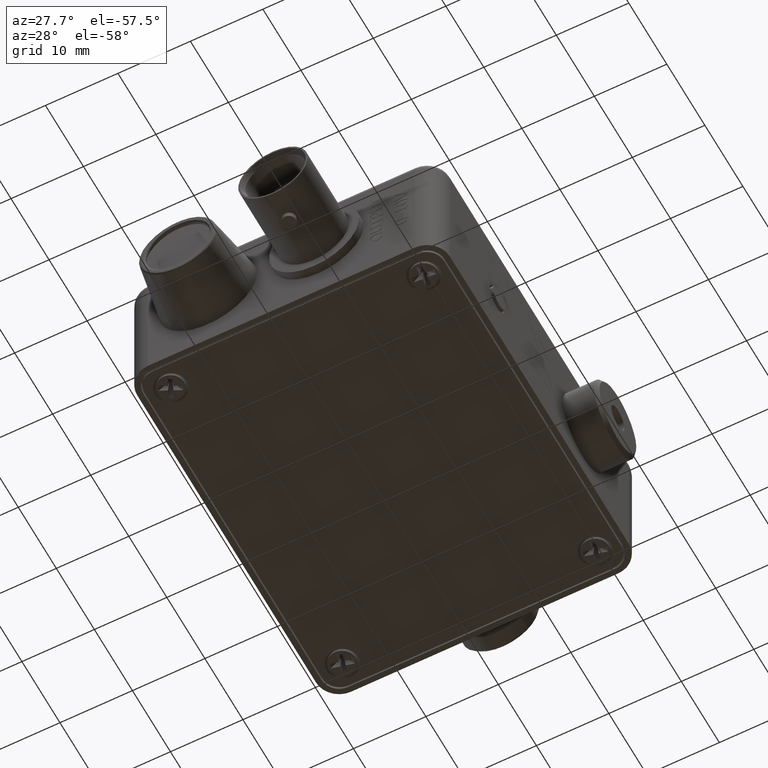
[diagram: clean part render]
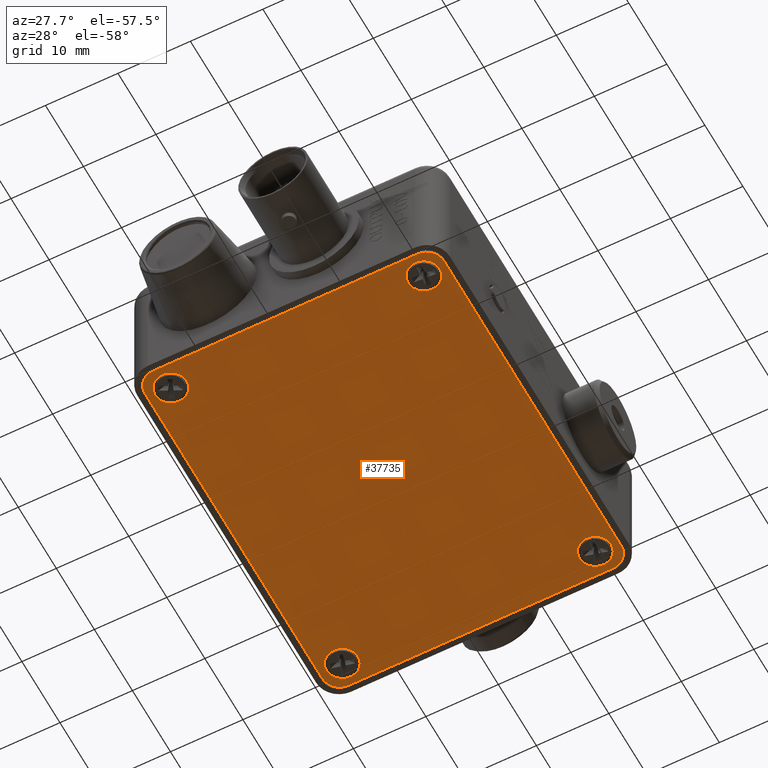
[diagram: same view with one face highlighted and labeled with its STEP entity id]
A machine part, auxiliary view. The second image highlights one B-rep face of the part: STEP entity #37735.
In plain terms, the highlighted planar face has unit normal (-0, -0, 1).
Its self-contained STEP definition (entity closure, byte-faithful):
#37459 = VERTEX_POINT ( 'NONE', #112991 ) ;
#37463 = EDGE_CURVE ( 'NONE', #37459, #37466, #112983, .T. ) ;
#37466 = VERTEX_POINT ( 'NONE', #112974 ) ;
#37467 = VERTEX_POINT ( 'NONE', #112972 ) ;
#37484 = VERTEX_POINT ( 'NONE', #113008 ) ;
#37487 = EDGE_CURVE ( 'NONE', #37484, #37488, #113109, .T. ) ;
#37488 = VERTEX_POINT ( 'NONE', #113101 ) ;
#37505 = VERTEX_POINT ( 'NONE', #113139 ) ;
#37508 = EDGE_CURVE ( 'NONE', #37505, #37467, #113135, .T. ) ;
#37560 = VERTEX_POINT ( 'NONE', #113371 ) ;
#37562 = EDGE_CURVE ( 'NONE', #37560, #37565, #113366, .T. ) ;
#37565 = VERTEX_POINT ( 'NONE', #113461 ) ;
#37654 = EDGE_CURVE ( 'NONE', #37656, #37658, #113705, .T. ) ;
#37656 = VERTEX_POINT ( 'NONE', #113698 ) ;
#37658 = VERTEX_POINT ( 'NONE', #113696 ) ;
#37672 = VERTEX_POINT ( 'NONE', #113686 ) ;
#37677 = EDGE_CURVE ( 'NONE', #37679, #37672, #113805, .T. ) ;
#37679 = VERTEX_POINT ( 'NONE', #113801 ) ;
#37690 = EDGE_CURVE ( 'NONE', #37691, #37692, #113851, .T. ) ;
#37691 = VERTEX_POINT ( 'NONE', #113843 ) ;
#37692 = VERTEX_POINT ( 'NONE', #113841 ) ;
#37722 = ORIENTED_EDGE ( 'NONE', *, *, #37677, .T. ) ;
#37724 = ORIENTED_EDGE ( 'NONE', *, *, #37725, .T. ) ;
#37725 = EDGE_CURVE ( 'NONE', #37672, #37691, #113979, .T. ) ;
#37735 = ADVANCED_FACE ( 'NONE', ( #114070, #114068, #114067, #114066, #114065 ), #114140, .F. ) ;
#37737 = EDGE_LOOP ( 'NONE', ( #37738, #37741 ) ) ;
#37738 = ORIENTED_EDGE ( 'NONE', *, *, #37740, .F. ) ;
#37740 = EDGE_CURVE ( 'NONE', #37467, #37505, #114128, .T. ) ;
#37741 = ORIENTED_EDGE ( 'NONE', *, *, #37508, .F. ) ;
#37745 = EDGE_LOOP ( 'NONE', ( #37748, #37863 ) ) ;
#37748 = ORIENTED_EDGE ( 'NONE', *, *, #37750, .F. ) ;
#37750 = EDGE_CURVE ( 'NONE', #37488, #37484, #114113, .T. ) ;
#37777 = EDGE_CURVE ( 'NONE', #37779, #37781, #114264, .T. ) ;
#37779 = VERTEX_POINT ( 'NONE', #114258 ) ;
#37781 = VERTEX_POINT ( 'NONE', #114256 ) ;
#37844 = ORIENTED_EDGE ( 'NONE', *, *, #37690, .T. ) ;
#37845 = ORIENTED_EDGE ( 'NONE', *, *, #37847, .T. ) ;
#37847 = EDGE_CURVE ( 'NONE', #37692, #37656, #114340, .T. ) ;
#37848 = ORIENTED_EDGE ( 'NONE', *, *, #37654, .T. ) ;
#37849 = ORIENTED_EDGE ( 'NONE', *, *, #37850, .T. ) ;
#37850 = EDGE_CURVE ( 'NONE', #37658, #37779, #114328, .T. ) ;
#37851 = ORIENTED_EDGE ( 'NONE', *, *, #37777, .T. ) ;
#37853 = ORIENTED_EDGE ( 'NONE', *, *, #37855, .T. ) ;
#37855 = EDGE_CURVE ( 'NONE', #37781, #37679, #114426, .T. ) ;
#37863 = ORIENTED_EDGE ( 'NONE', *, *, #37487, .F. ) ;
#37865 = EDGE_LOOP ( 'NONE', ( #37866, #37868 ) ) ;
#37866 = ORIENTED_EDGE ( 'NONE', *, *, #37867, .F. ) ;
#37867 = EDGE_CURVE ( 'NONE', #37466, #37459, #114481, .T. ) ;
#37868 = ORIENTED_EDGE ( 'NONE', *, *, #37463, .F. ) ;
#37869 = EDGE_LOOP ( 'NONE', ( #37871, #37874 ) ) ;
#37871 = ORIENTED_EDGE ( 'NONE', *, *, #37872, .F. ) ;
#37872 = EDGE_CURVE ( 'NONE', #37565, #37560, #114470, .T. ) ;
#37874 = ORIENTED_EDGE ( 'NONE', *, *, #37562, .F. ) ;
#37877 = EDGE_LOOP ( 'NONE', ( #37722, #37724, #37844, #37845, #37848, #37849, #37851, #37853 ) ) ;
#112972 = CARTESIAN_POINT ( 'NONE',  ( 0.2484999999999999700, 1.937499999999999800, -1.689568522908650700E-016 ) ) ;
#112974 = CARTESIAN_POINT ( 'NONE',  ( 1.623499999999999900, 0.1624999999999999800, -3.482343768750823800E-016 ) ) ;
#112976 = DIRECTION ( 'NONE',  ( 1.000000000000000000, 0.0000000000000000000, 2.074008503664340500E-017 ) ) ;
#112978 = DIRECTION ( 'NONE',  ( 2.074008503664369100E-017, 1.206915742332253800E-016, -1.000000000000000000 ) ) ;
#112980 = CARTESIAN_POINT ( 'NONE',  ( 1.537499999999999900, 0.1624999999999999800, -3.500180241882337100E-016 ) ) ;
#112982 = AXIS2_PLACEMENT_3D ( 'NONE', #112980, #112978, #112976 ) ;
#112983 = CIRCLE ( 'NONE', #112982, 0.08600000000000011800 ) ;
#112991 = CARTESIAN_POINT ( 'NONE',  ( 1.451499999999999800, 0.1624999999999999500, -3.518016715013850800E-016 ) ) ;
#113008 = CARTESIAN_POINT ( 'NONE',  ( 0.07650000000000012300, 0.1624999999999999500, -3.859497714221883500E-016 ) ) ;
#113101 = CARTESIAN_POINT ( 'NONE',  ( 0.2484999999999998300, 0.1624999999999999800, -3.823824767958856900E-016 ) ) ;
#113103 = DIRECTION ( 'NONE',  ( 1.000000000000000000, 0.0000000000000000000, 2.074008503664346900E-017 ) ) ;
#113104 = DIRECTION ( 'NONE',  ( 2.074008503664369100E-017, 1.206915742332253800E-016, -1.000000000000000000 ) ) ;
#113106 = CARTESIAN_POINT ( 'NONE',  ( 0.1624999999999999800, 0.1624999999999999800, -3.841661241090370200E-016 ) ) ;
#113108 = AXIS2_PLACEMENT_3D ( 'NONE', #113106, #113104, #113103 ) ;
#113109 = CIRCLE ( 'NONE', #113108, 0.08599999999999985400 ) ;
#113128 = DIRECTION ( 'NONE',  ( 1.000000000000000000, 0.0000000000000000000, 2.074008503664379300E-017 ) ) ;
#113130 = DIRECTION ( 'NONE',  ( 2.074008503664369100E-017, 1.206915742332253800E-016, -1.000000000000000000 ) ) ;
#113131 = CARTESIAN_POINT ( 'NONE',  ( 0.1624999999999999800, 1.937499999999999800, -1.707404996040164500E-016 ) ) ;
#113133 = AXIS2_PLACEMENT_3D ( 'NONE', #113131, #113130, #113128 ) ;
#113135 = CIRCLE ( 'NONE', #113133, 0.08599999999999997900 ) ;
#113139 = CARTESIAN_POINT ( 'NONE',  ( 0.07650000000000001200, 1.937499999999999800, -1.725241469171678300E-016 ) ) ;
#113366 = CIRCLE ( 'NONE', #113467, 0.08599999999999985400 ) ;
#113371 = CARTESIAN_POINT ( 'NONE',  ( 1.451500000000000000, 1.937499999999999800, -1.383760469963645400E-016 ) ) ;
#113461 = CARTESIAN_POINT ( 'NONE',  ( 1.623499999999999700, 1.937499999999999800, -1.348087523700618100E-016 ) ) ;
#113462 = DIRECTION ( 'NONE',  ( 1.000000000000000000, 0.0000000000000000000, 2.074008503664382100E-017 ) ) ;
#113464 = DIRECTION ( 'NONE',  ( 2.074008503664369100E-017, 1.206915742332253800E-016, -1.000000000000000000 ) ) ;
#113465 = CARTESIAN_POINT ( 'NONE',  ( 1.537499999999999900, 1.937499999999999800, -1.365923996832131600E-016 ) ) ;
#113467 = AXIS2_PLACEMENT_3D ( 'NONE', #113465, #113464, #113462 ) ;
#113686 = CARTESIAN_POINT ( 'NONE',  ( 1.567499999999999700, 2.062500000000000000, -5.122214988120493500E-017 ) ) ;
#113696 = CARTESIAN_POINT ( 'NONE',  ( 0.1324999999999997600, 0.03749999999999980400, -3.329439742278321000E-016 ) ) ;
#113698 = CARTESIAN_POINT ( 'NONE',  ( 1.567499999999999900, 0.03750000000000007500, -2.987958743070287800E-016 ) ) ;
#113699 = DIRECTION ( 'NONE',  ( -1.000000000000000000, -1.110223024625156500E-016, -2.074008503664370400E-017 ) ) ;
#113700 = VECTOR ( 'NONE', #113699, 39.37007874015748100 ) ;
#113702 = CARTESIAN_POINT ( 'NONE',  ( 1.662499999999999900, 0.03750000000000007500, -2.987958743070287800E-016 ) ) ;
#113705 = LINE ( 'NONE', #113702, #113700 ) ;
#113801 = CARTESIAN_POINT ( 'NONE',  ( 0.1324999999999994800, 2.062499999999999600, -8.537024980200822600E-017 ) ) ;
#113802 = DIRECTION ( 'NONE',  ( 1.000000000000000000, 1.110223024625156500E-016, 2.074008503664370400E-017 ) ) ;
#113803 = VECTOR ( 'NONE', #113802, 39.37007874015748100 ) ;
#113804 = CARTESIAN_POINT ( 'NONE',  ( 1.662499999999999600, 2.062500000000000000, -5.122214988120493500E-017 ) ) ;
#113805 = LINE ( 'NONE', #113804, #113803 ) ;
#113841 = CARTESIAN_POINT ( 'NONE',  ( 1.662499999999999900, 0.1325000000000000300, -2.817218243466271300E-016 ) ) ;
#113843 = CARTESIAN_POINT ( 'NONE',  ( 1.662499999999999600, 1.967500000000000000, -5.975917486140575200E-017 ) ) ;
#113845 = DIRECTION ( 'NONE',  ( 1.110223024625156500E-016, -1.000000000000000000, -1.206915742332253800E-016 ) ) ;
#113846 = VECTOR ( 'NONE', #113845, 39.37007874015748100 ) ;
#113849 = CARTESIAN_POINT ( 'NONE',  ( 1.662499999999999600, 2.062500000000000000, -5.122214988120493500E-017 ) ) ;
#113851 = LINE ( 'NONE', #113849, #113846 ) ;
#113979 = CIRCLE ( 'NONE', #114095, 0.09499999999999994600 ) ;
#114065 = FACE_OUTER_BOUND ( 'NONE', #37877, .T. ) ;
#114066 = FACE_BOUND ( 'NONE', #37869, .T. ) ;
#114067 = FACE_BOUND ( 'NONE', #37865, .T. ) ;
#114068 = FACE_BOUND ( 'NONE', #37745, .T. ) ;
#114070 = FACE_BOUND ( 'NONE', #37737, .T. ) ;
#114091 = DIRECTION ( 'NONE',  ( -1.000000000000000000, 0.0000000000000000000, -2.074008503664368800E-017 ) ) ;
#114093 = DIRECTION ( 'NONE',  ( 2.074008503664369100E-017, 1.206915742332253800E-016, -1.000000000000000000 ) ) ;
#114094 = CARTESIAN_POINT ( 'NONE',  ( 1.567499999999999700, 1.967500000000000000, -5.975917486140575200E-017 ) ) ;
#114095 = AXIS2_PLACEMENT_3D ( 'NONE', #114094, #114093, #114091 ) ;
#114108 = DIRECTION ( 'NONE',  ( 1.000000000000000000, 0.0000000000000000000, 2.074008503664346900E-017 ) ) ;
#114110 = DIRECTION ( 'NONE',  ( 2.074008503664369100E-017, 1.206915742332253800E-016, -1.000000000000000000 ) ) ;
#114111 = CARTESIAN_POINT ( 'NONE',  ( 0.1624999999999999800, 0.1624999999999999800, -3.841661241090370200E-016 ) ) ;
#114112 = AXIS2_PLACEMENT_3D ( 'NONE', #114111, #114110, #114108 ) ;
#114113 = CIRCLE ( 'NONE', #114112, 0.08599999999999985400 ) ;
#114120 = DIRECTION ( 'NONE',  ( 1.000000000000000000, 0.0000000000000000000, 2.074008503664379300E-017 ) ) ;
#114123 = DIRECTION ( 'NONE',  ( 2.074008503664369100E-017, 1.206915742332253800E-016, -1.000000000000000000 ) ) ;
#114125 = CARTESIAN_POINT ( 'NONE',  ( 0.1624999999999999800, 1.937499999999999800, -1.707404996040164500E-016 ) ) ;
#114127 = AXIS2_PLACEMENT_3D ( 'NONE', #114125, #114123, #114120 ) ;
#114128 = CIRCLE ( 'NONE', #114127, 0.08599999999999997900 ) ;
#114134 = DIRECTION ( 'NONE',  ( -1.000000000000000000, -1.110223024625156500E-016, -2.074008503664370400E-017 ) ) ;
#114135 = DIRECTION ( 'NONE',  ( -2.074008503664369100E-017, -1.206915742332253800E-016, 1.000000000000000000 ) ) ;
#114136 = CARTESIAN_POINT ( 'NONE',  ( 0.03749999999999953400, 2.062499999999999600, -8.537024980200822600E-017 ) ) ;
#114138 = AXIS2_PLACEMENT_3D ( 'NONE', #114136, #114135, #114134 ) ;
#114140 = PLANE ( 'NONE',  #114138 ) ;
#114256 = CARTESIAN_POINT ( 'NONE',  ( 0.03749999999999953400, 1.967499999999999800, -9.390727478220904200E-017 ) ) ;
#114258 = CARTESIAN_POINT ( 'NONE',  ( 0.03749999999999980400, 0.1324999999999997600, -3.158699242674304400E-016 ) ) ;
#114259 = DIRECTION ( 'NONE',  ( -1.110223024625156500E-016, 1.000000000000000000, 1.206915742332253800E-016 ) ) ;
#114261 = VECTOR ( 'NONE', #114259, 39.37007874015748100 ) ;
#114262 = CARTESIAN_POINT ( 'NONE',  ( 0.03749999999999953400, 2.062499999999999600, -8.537024980200822600E-017 ) ) ;
#114264 = LINE ( 'NONE', #114262, #114261 ) ;
#114323 = DIRECTION ( 'NONE',  ( -1.000000000000000000, -1.797268416884384000E-016, -2.074008503664367900E-017 ) ) ;
#114324 = DIRECTION ( 'NONE',  ( 2.074008503664369100E-017, 1.206915742332253800E-016, -1.000000000000000000 ) ) ;
#114325 = CARTESIAN_POINT ( 'NONE',  ( 0.1324999999999997600, 0.1324999999999997600, -3.158699242674304400E-016 ) ) ;
#114326 = AXIS2_PLACEMENT_3D ( 'NONE', #114325, #114324, #114323 ) ;
#114328 = CIRCLE ( 'NONE', #114326, 0.09499999999999998700 ) ;
#114334 = DIRECTION ( 'NONE',  ( -1.000000000000000000, -1.797268416884384800E-016, -2.074008503664368800E-017 ) ) ;
#114335 = DIRECTION ( 'NONE',  ( 2.074008503664369100E-017, 1.206915742332253800E-016, -1.000000000000000000 ) ) ;
#114337 = CARTESIAN_POINT ( 'NONE',  ( 1.567499999999999900, 0.1325000000000000300, -2.817218243466271300E-016 ) ) ;
#114338 = AXIS2_PLACEMENT_3D ( 'NONE', #114337, #114335, #114334 ) ;
#114340 = CIRCLE ( 'NONE', #114338, 0.09499999999999994600 ) ;
#114422 = DIRECTION ( 'NONE',  ( -1.000000000000000000, 0.0000000000000000000, -2.074008503664367900E-017 ) ) ;
#114423 = DIRECTION ( 'NONE',  ( 2.074008503664369100E-017, 1.206915742332253800E-016, -1.000000000000000000 ) ) ;
#114424 = CARTESIAN_POINT ( 'NONE',  ( 0.1324999999999994800, 1.967499999999999800, -9.390727478220904200E-017 ) ) ;
#114425 = AXIS2_PLACEMENT_3D ( 'NONE', #114424, #114423, #114422 ) ;
#114426 = CIRCLE ( 'NONE', #114425, 0.09499999999999998700 ) ;
#114464 = DIRECTION ( 'NONE',  ( 1.000000000000000000, 0.0000000000000000000, 2.074008503664382100E-017 ) ) ;
#114465 = DIRECTION ( 'NONE',  ( 2.074008503664369100E-017, 1.206915742332253800E-016, -1.000000000000000000 ) ) ;
#114466 = CARTESIAN_POINT ( 'NONE',  ( 1.537499999999999900, 1.937499999999999800, -1.365923996832131600E-016 ) ) ;
#114467 = AXIS2_PLACEMENT_3D ( 'NONE', #114466, #114465, #114464 ) ;
#114470 = CIRCLE ( 'NONE', #114467, 0.08599999999999985400 ) ;
#114474 = DIRECTION ( 'NONE',  ( 1.000000000000000000, 0.0000000000000000000, 2.074008503664340500E-017 ) ) ;
#114476 = DIRECTION ( 'NONE',  ( 2.074008503664369100E-017, 1.206915742332253800E-016, -1.000000000000000000 ) ) ;
#114477 = CARTESIAN_POINT ( 'NONE',  ( 1.537499999999999900, 0.1624999999999999800, -3.500180241882337100E-016 ) ) ;
#114478 = AXIS2_PLACEMENT_3D ( 'NONE', #114477, #114476, #114474 ) ;
#114481 = CIRCLE ( 'NONE', #114478, 0.08600000000000011800 ) ;